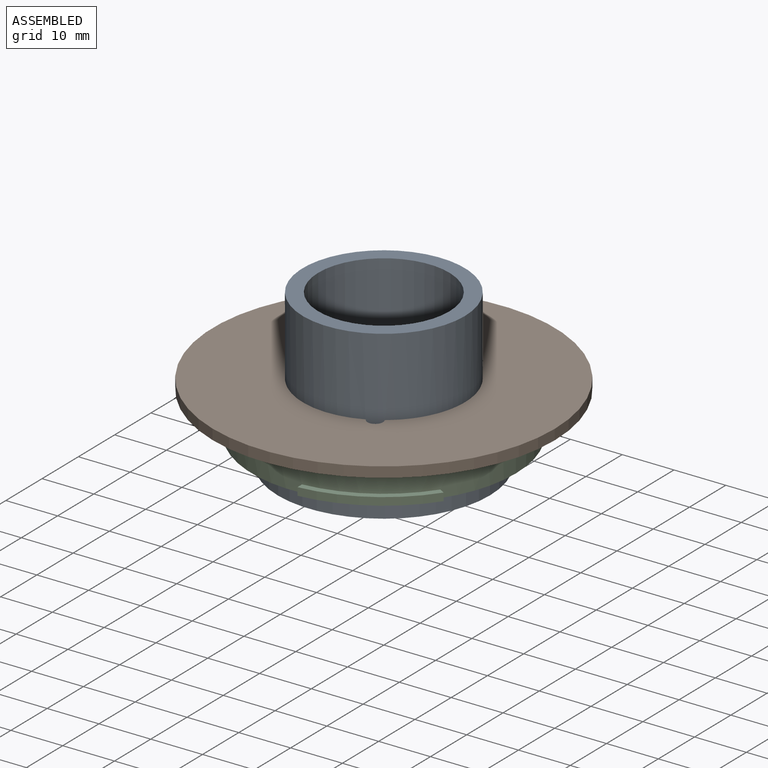
[diagram: assembled view]
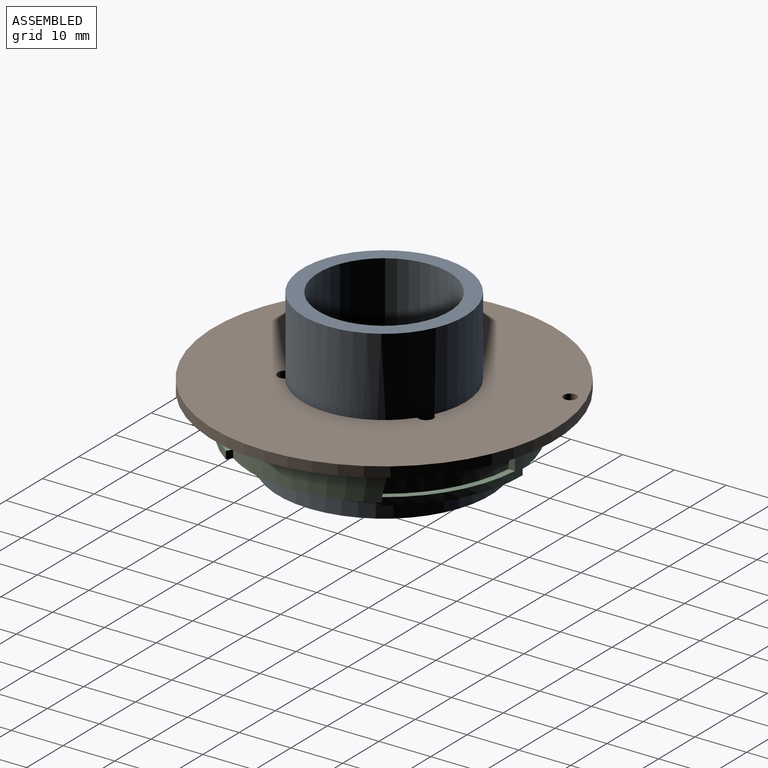
[diagram: assembled view, second angle]
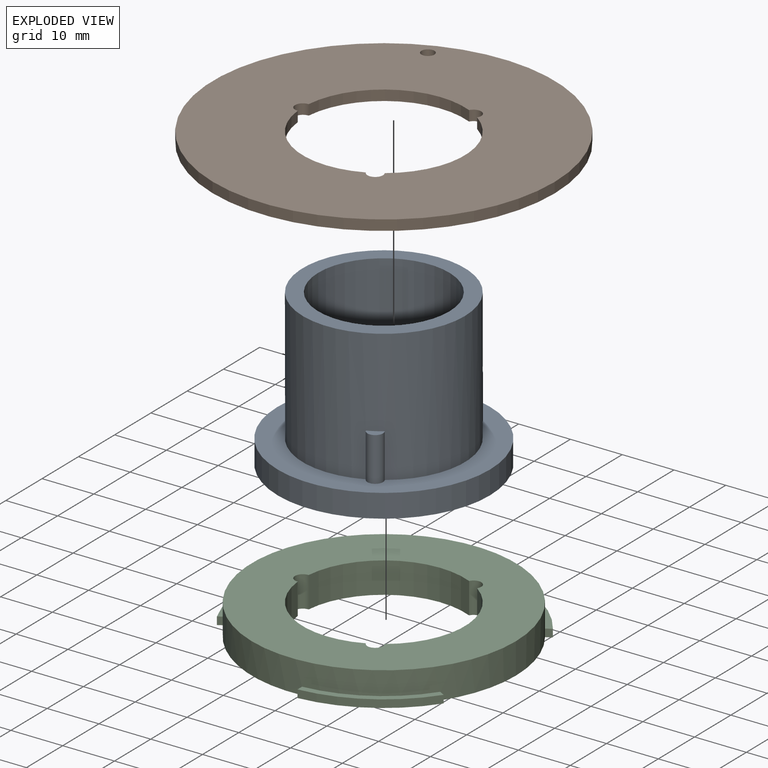
[diagram: exploded view]
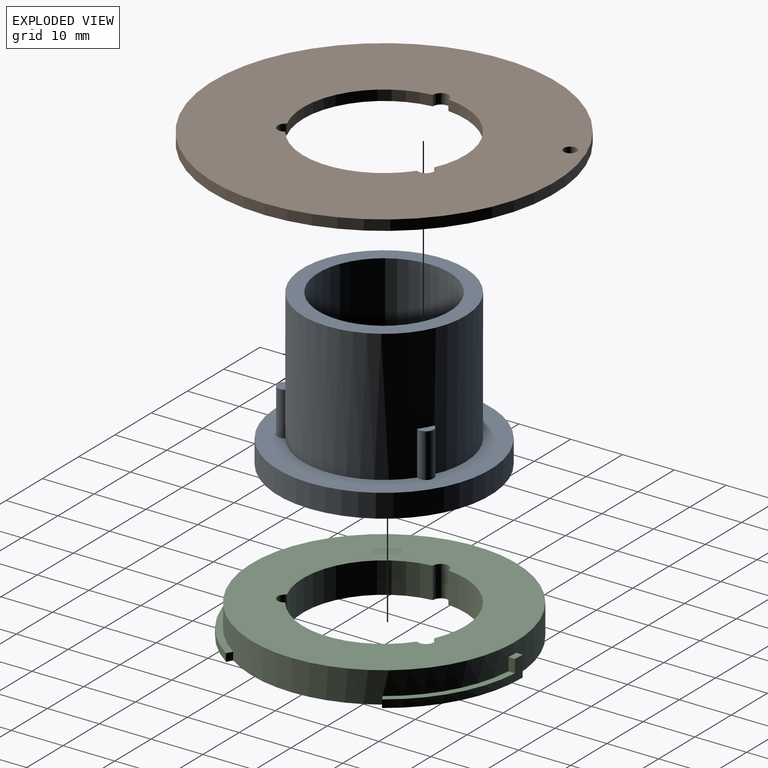
[diagram: exploded view, second angle]
ASSEMBLY  parts=3 mates=2
PART A: 12 faces, bbox 41x41x30 mm
  f0: cylinder r=15.65mm len=31.3mm, axis (0,0,-1), area 2430.9mm2, adj f3,f5,f6,f7,f8,f9,f10,f11
  f1: cylinder r=20.5mm len=41mm, axis (0,0,-1), area 579.6mm2, adj f3,f4
  f2: cylinder r=12.65mm len=30mm, axis (0,0,-1), area 2384.5mm2, adj f4,f5
  f3: plane 41x41mm, normal (0,0,1), area 540mm2, adj f0,f1,f7,f8,f10
  f4: plane 41x41mm, normal (0,0,-1), area 817.5mm2, adj f1,f2
  f5: plane 31.3x31.3mm, normal (0,0,1), area 266.7mm2, adj f0,f2
  f6: plane 3x1.57mm, normal (0,0,1), area 3.6mm2, adj f0,f7
  f7: cylinder r=1.5mm len=8.5mm, axis (0,0,-1), area 41.3mm2, adj f0,f3,f6
  f8: cylinder r=1.5mm len=8.5mm, axis (0,0,-1), area 41.3mm2, adj f0,f3,f9
  f9: plane 2.83x2.31mm, normal (0,0,1), area 3.6mm2, adj f0,f8
  f10: cylinder r=1.5mm len=8.5mm, axis (0,0,-1), area 41.3mm2, adj f0,f3,f11
  f11: plane 2.83x2.31mm, normal (0,0,1), area 3.6mm2, adj f0,f10
PART B: 10 faces, bbox 66x66x2 mm
  f0: cylinder r=15.65mm len=25.48mm, axis (0,0,-1), area 59.6mm2, adj f1,f7,f8,f9
  f1: cylinder r=1.5mm len=2.83mm, axis (0,0,-1), area 9.7mm2, adj f0,f2,f8,f9
  f2: cylinder r=15.65mm len=22.07mm, axis (0,0,-1), area 59.6mm2, adj f1,f3,f8,f9
  f3: cylinder r=1.5mm len=3mm, axis (0,0,-1), area 9.7mm2, adj f2,f4,f8,f9
  f4: cylinder r=15.65mm len=22.07mm, axis (0,0,-1), area 59.6mm2, adj f3,f7,f8,f9
  f5: cylinder r=33mm len=66mm, axis (0,0,-1), area 414.7mm2, adj f8,f9
  f6: cylinder r=1.25mm len=2.5mm, axis (0,0,-1), area 15.7mm2, adj f8,f9
  f7: cylinder r=1.5mm len=2.83mm, axis (0,0,-1), area 9.7mm2, adj f0,f4,f8,f9
  f8: plane 66x66mm, normal (0,0,1), area 2636mm2, adj f0,f1,f2,f3,f4,f5,f6,f7
  f9: plane 66x66mm, normal (0,0,-1), area 2636mm2, adj f0,f1,f2,f3,f4,f5,f6,f7
PART C: 23 faces, bbox 52.3x53.4x6 mm
  f0: cylinder r=25.5mm len=51mm, axis (0,0,-1), area 851.2mm2, adj f7,f8,f9,f11,f12,f14,f15,f16
  f1: cylinder r=15.65mm len=25.48mm, axis (0,0,-1), area 178.7mm2, adj f2,f6,f7,f8
  f2: cylinder r=1.5mm len=6mm, axis (0,0,-1), area 29.1mm2, adj f1,f3,f7,f8
  f3: cylinder r=15.65mm len=22.07mm, axis (0,0,-1), area 178.7mm2, adj f2,f4,f7,f8
  f4: cylinder r=1.5mm len=6mm, axis (0,0,-1), area 29.1mm2, adj f3,f5,f7,f8
  f5: cylinder r=15.65mm len=22.07mm, axis (0,0,-1), area 178.7mm2, adj f4,f6,f7,f8
  f6: cylinder r=1.5mm len=6mm, axis (0,0,-1), area 29.1mm2, adj f1,f5,f7,f8
  f7: plane 51x51mm, normal (0,0,1), area 1262.6mm2, adj f0,f1,f2,f3,f4,f5,f6
  f8: plane 53.43x52.25mm, normal (0,0,-1), area 1352.6mm2, adj f0,f1,f2,f3,f4,f5,f6,f9
  f9: plane 1.5x1.09mm, normal (0.5,-0.87,0), area 1.9mm2, adj f0,f8,f10,f11
  f10: cylinder r=26.75mm len=22.1mm, axis (0,0,-1), area 44mm2, adj f8,f9,f11,f20,f21,f22
  f11: plane 20.1x12.23mm, normal (0,0,1), area 29.2mm2, adj f0,f9,f10,f20
  f12: plane 1.5x1.09mm, normal (0.5,0.87,0), area 1.9mm2, adj f0,f8,f13,f15
  f13: cylinder r=26.75mm len=23.21mm, axis (0,0,-1), area 36mm2, adj f8,f12,f14,f15
  f14: plane 1.5x1.09mm, normal (0.5,-0.87,0), area 1.9mm2, adj f0,f8,f13,f15
  f15: plane 23.21x3.73mm, normal (0,0,1), area 29.2mm2, adj f0,f12,f13,f14
  f16: plane 1.5x1.25mm, normal (-1,0,0), area 1.9mm2, adj f0,f8,f17,f19
  f17: cylinder r=26.75mm len=20.1mm, axis (0,0,-1), area 36mm2, adj f8,f16,f18,f19
  f18: plane 1.5x1.09mm, normal (0.5,0.87,0), area 1.9mm2, adj f0,f8,f17,f19
  f19: plane 20.1x12.23mm, normal (0,0,1), area 29.2mm2, adj f0,f16,f17,f18
  f20: plane 2.5x1.25mm, normal (1,0,0), area 3.1mm2, adj f0,f10,f11,f22
  f21: plane 4x1.25mm, normal (-1,0,0), area 5mm2, adj f0,f8,f10,f22
  f22: plane 2x1.33mm, normal (0,0,1), area 2.5mm2, adj f0,f10,f20,f21
PLACE A t=(0,0,-5.18)mm
PLACE B t=(0,0,7.78)mm
PLACE C at identity fixed
MATE slider B.f4 <-> A.f2  axis (0,0,1) through (0,0,9.78)mm
MATE slider A.f2 <-> C.f0  axis (0,0,-1) through (0,0,-5.18)mm
